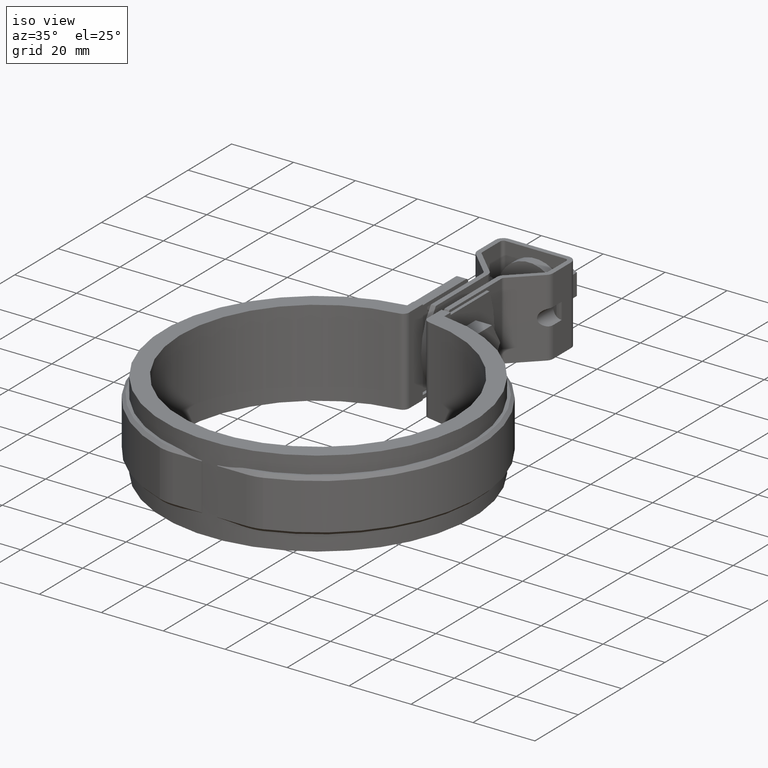
[diagram: clean part render]
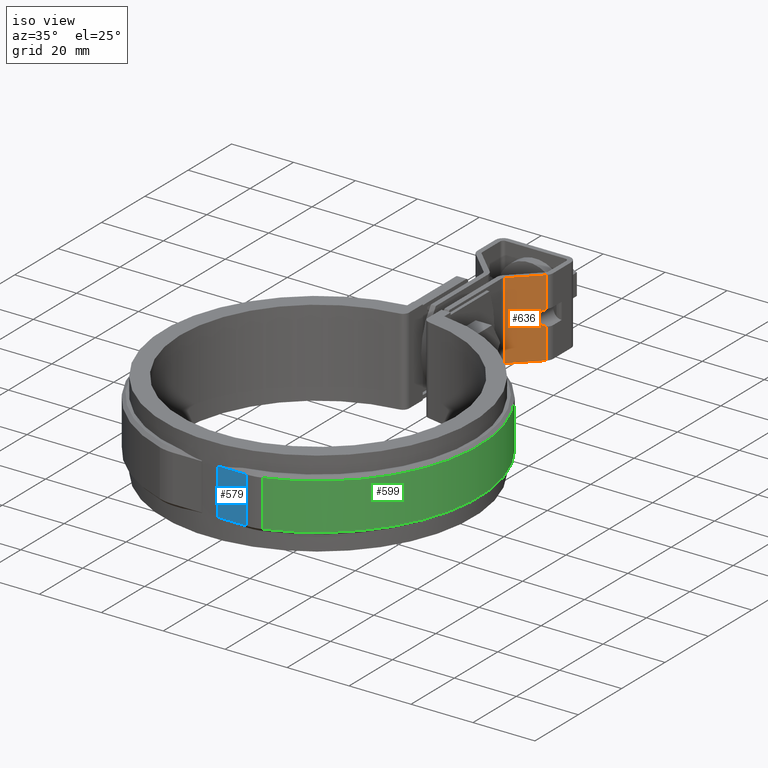
[diagram: same view with three faces highlighted in distinct colors, each labeled with its STEP entity id]
A machine part, iso view with three faces highlighted in distinct colors.
Their STEP definitions:

[orange] entity #636 — the highlighted planar face has unit normal (0.6983, -0.7158, 0).
#636 = ADVANCED_FACE( '', ( #1187 ), #1188, .T. );
#1187 = FACE_OUTER_BOUND( '', #2527, .T. );
#1188 = PLANE( '', #2528 );
#2527 = EDGE_LOOP( '', ( #5851, #5852, #5853, #5854, #5855, #5856 ) );
#2528 = AXIS2_PLACEMENT_3D( '', #5857, #5858, #5859 );
#5851 = ORIENTED_EDGE( '', *, *, #7897, .T. );
#5852 = ORIENTED_EDGE( '', *, *, #7898, .F. );
#5853 = ORIENTED_EDGE( '', *, *, #7882, .T. );
#5854 = ORIENTED_EDGE( '', *, *, #7899, .F. );
#5855 = ORIENTED_EDGE( '', *, *, #7807, .F. );
#5856 = ORIENTED_EDGE( '', *, *, #7900, .F. );
#5857 = CARTESIAN_POINT( '', ( 3.90167616437032, 81.6516822966422, 12.4999999943156 ) );
#5858 = DIRECTION( '', ( 0.698323835531320, -0.715781964517705, 3.41092840061489E-011 ) );
#5859 = DIRECTION( '', ( 0.000000000000000, -4.76531761024906E-011, -1.00000000000000 ) );
#7807 = EDGE_CURVE( '', #9115, #9117, #9118, .F. );
#7882 = EDGE_CURVE( '', #9243, #9244, #9245, .F. );
#7897 = EDGE_CURVE( '', #9269, #9270, #9271, .T. );
#7898 = EDGE_CURVE( '', #9243, #9270, #9272, .T. );
#7899 = EDGE_CURVE( '', #9117, #9244, #9273, .T. );
#7900 = EDGE_CURVE( '', #9269, #9115, #9274, .T. );
#9115 = VERTEX_POINT( '', #13023 );
#9117 = VERTEX_POINT( '', #13025 );
#9118 = LINE( '', #13026, #13027 );
#9243 = VERTEX_POINT( '', #13233 );
#9244 = VERTEX_POINT( '', #13234 );
#9245 = ELLIPSE( '', #13235, 3.70224472166266, 2.64999999999997 );
#9269 = VERTEX_POINT( '', #13282 );
#9270 = VERTEX_POINT( '', #13283 );
#9271 = LINE( '', #13284, #13285 );
#9272 = LINE( '', #13286, #13287 );
#9273 = LINE( '', #13288, #13289 );
#9274 = LINE( '', #13290, #13291 );
#13023 = CARTESIAN_POINT( '', ( 3.30167616437098, 81.0663164700519, 12.4999999943429 ) );
#13025 = CARTESIAN_POINT( '', ( 11.4656419722716, 89.0311607923885, 12.4999999939710 ) );
#13026 = CARTESIAN_POINT( '', ( 5.72823783045374, 83.4336935957860, 12.4999999942323 ) );
#13027 = VECTOR( '', #14927, 1000.00000000000 );
#13233 = CARTESIAN_POINT( '', ( 11.4656419722789, 89.0311607916793, -2.53126105232718 ) );
#13234 = CARTESIAN_POINT( '', ( 11.4656419722765, 89.0311607919181, 2.53126104026931 ) );
#13235 = AXIS2_PLACEMENT_3D( '', #15042, #15043, #15044 );
#13282 = CARTESIAN_POINT( '', ( 3.30167616438309, 81.0663164688724, -12.5000000056571 ) );
#13283 = CARTESIAN_POINT( '', ( 11.4656419722837, 89.0311607912090, -12.5000000060290 ) );
#13284 = CARTESIAN_POINT( '', ( 3.90167616438242, 81.6516822954627, -12.5000000056845 ) );
#13285 = VECTOR( '', #15067, 1000.00000000000 );
#13286 = CARTESIAN_POINT( '', ( 11.4656419722716, 89.0311607923885, 12.4999999939711 ) );
#13287 = VECTOR( '', #15068, 1000.00000000000 );
#13288 = CARTESIAN_POINT( '', ( 11.4656419722716, 89.0311607923885, 12.4999999939711 ) );
#13289 = VECTOR( '', #15069, 1000.00000000000 );
#13290 = CARTESIAN_POINT( '', ( 3.30167616437099, 81.0663164700519, 12.4999999943429 ) );
#13291 = VECTOR( '', #15070, 1000.00000000000 );
#14927 = DIRECTION( '', ( -0.715781964517705, -0.698323835531320, 3.26011656361548E-011 ) );
#15042 = CARTESIAN_POINT( '', ( 12.2499999998975, 89.7963881004335, -6.06465905272916E-009 ) );
#15043 = DIRECTION( '', ( 0.698323835531320, -0.715781964517705, 3.41092840061489E-011 ) );
#15044 = DIRECTION( '', ( 0.715781964517705, 0.698323835531320, -3.26011656361548E-011 ) );
#15067 = DIRECTION( '', ( 0.715781964517705, 0.698323835531320, -3.26011656361548E-011 ) );
#15068 = DIRECTION( '', ( 4.83999649787072E-013, -4.71809813440451E-011, -1.00000000000000 ) );
#15069 = DIRECTION( '', ( 4.83999649787072E-013, -4.71809813440451E-011, -1.00000000000000 ) );
#15070 = DIRECTION( '', ( -4.84060880104763E-013, 4.71809216071525E-011, 1.00000000000000 ) );

[blue] entity #579 — the highlighted planar face has unit normal (0, -1, 0).
#579 = ADVANCED_FACE( '', ( #1071 ), #1072, .T. );
#1071 = FACE_OUTER_BOUND( '', #2359, .T. );
#1072 = PLANE( '', #2360 );
#2359 = EDGE_LOOP( '', ( #5278, #5279, #5280, #5281 ) );
#2360 = AXIS2_PLACEMENT_3D( '', #5282, #5283, #5284 );
#5278 = ORIENTED_EDGE( '', *, *, #7776, .T. );
#5279 = ORIENTED_EDGE( '', *, *, #7753, .T. );
#5280 = ORIENTED_EDGE( '', *, *, #7574, .F. );
#5281 = ORIENTED_EDGE( '', *, *, #7717, .T. );
#5282 = CARTESIAN_POINT( '', ( 11.8531641345255, -50.0500000000000, -8.50000000000000 ) );
#5283 = DIRECTION( '', ( 0.000000000000000, -1.00000000000000, 0.000000000000000 ) );
#5284 = DIRECTION( '', ( 0.000000000000000, 0.000000000000000, -1.00000000000000 ) );
#7574 = EDGE_CURVE( '', #8735, #8736, #8737, .T. );
#7717 = EDGE_CURVE( '', #8735, #8987, #8989, .T. );
#7753 = EDGE_CURVE( '', #9039, #8736, #9041, .F. );
#7776 = EDGE_CURVE( '', #8987, #9039, #9068, .T. );
#8735 = VERTEX_POINT( '', #12099 );
#8736 = VERTEX_POINT( '', #12100 );
#8737 = LINE( '', #12101, #12102 );
#8987 = VERTEX_POINT( '', #12832 );
#8989 = LINE( '', #12835, #12836 );
#9039 = VERTEX_POINT( '', #12911 );
#9041 = LINE( '', #12914, #12915 );
#9068 = LINE( '', #12957, #12958 );
#12099 = CARTESIAN_POINT( '', ( 2.50000000000000, -50.0500000000000, -7.50000000000000 ) );
#12100 = CARTESIAN_POINT( '', ( 2.50000000000000, -50.0500000000000, 7.50000000000000 ) );
#12101 = CARTESIAN_POINT( '', ( 2.50000000000000, -50.0500000000000, -8.50000000000000 ) );
#12102 = VECTOR( '', #14662, 1000.00000000000 );
#12832 = CARTESIAN_POINT( '', ( 11.8531641345254, -50.0500000000000, -7.50000000000000 ) );
#12835 = CARTESIAN_POINT( '', ( 11.8531641345255, -50.0500000000000, -7.50000000000000 ) );
#12836 = VECTOR( '', #14778, 1000.00000000000 );
#12911 = CARTESIAN_POINT( '', ( 11.8531641345254, -50.0500000000000, 7.50000000000000 ) );
#12914 = CARTESIAN_POINT( '', ( 11.8531641345255, -50.0500000000000, 7.50000000000000 ) );
#12915 = VECTOR( '', #14835, 1000.00000000000 );
#12957 = CARTESIAN_POINT( '', ( 11.8531641345254, -50.0500000000000, -8.50000000000000 ) );
#12958 = VECTOR( '', #14872, 1000.00000000000 );
#14662 = DIRECTION( '', ( 0.000000000000000, 0.000000000000000, 1.00000000000000 ) );
#14778 = DIRECTION( '', ( 1.00000000000000, 0.000000000000000, 0.000000000000000 ) );
#14835 = DIRECTION( '', ( 1.00000000000000, 0.000000000000000, 0.000000000000000 ) );
#14872 = DIRECTION( '', ( 0.000000000000000, 0.000000000000000, 1.00000000000000 ) );

[green] entity #599 — the highlighted cylindrical surface (partial cylindrical patch) has radius 52 mm, axis along (0, 0, -1).
#599 = ADVANCED_FACE( '', ( #1111 ), #1112, .T. );
#1111 = FACE_OUTER_BOUND( '', #2402, .T. );
#1112 = CYLINDRICAL_SURFACE( '', #2403, 52.0000000000000 );
#2402 = EDGE_LOOP( '', ( #5504, #5505, #5506, #5507 ) );
#2403 = AXIS2_PLACEMENT_3D( '', #5508, #5509, #5510 );
#5504 = ORIENTED_EDGE( '', *, *, #7742, .F. );
#5505 = ORIENTED_EDGE( '', *, *, #7670, .T. );
#5506 = ORIENTED_EDGE( '', *, *, #7789, .F. );
#5507 = ORIENTED_EDGE( '', *, *, #7749, .T. );
#5508 = CARTESIAN_POINT( '', ( 0.000000000000000, 6.93889390390723E-015, -8.50000000000000 ) );
#5509 = DIRECTION( '', ( 0.000000000000000, 0.000000000000000, -1.00000000000000 ) );
#5510 = DIRECTION( '', ( 0.0961538461538461, 0.995366484200579, 0.000000000000000 ) );
#7670 = EDGE_CURVE( '', #8904, #8906, #8908, .T. );
#7742 = EDGE_CURVE( '', #8904, #9023, #9024, .F. );
#7749 = EDGE_CURVE( '', #9034, #9023, #9035, .T. );
#7789 = EDGE_CURVE( '', #9034, #8906, #9082, .T. );
#8904 = VERTEX_POINT( '', #12653 );
#8906 = VERTEX_POINT( '', #12658 );
#8908 = CIRCLE( '', #12661, 52.0000000000000 );
#9023 = VERTEX_POINT( '', #12885 );
#9024 = LINE( '', #12886, #12887 );
#9034 = VERTEX_POINT( '', #12905 );
#9035 = CIRCLE( '', #12906, 52.0000000000000 );
#9082 = LINE( '', #12979, #12980 );
#12653 = CARTESIAN_POINT( '', ( 6.00000000000000, 51.6526862805799, 7.50000000000000 ) );
#12658 = CARTESIAN_POINT( '', ( 16.6585009458195, -49.2594594594595, 7.49999999999995 ) );
#12661 = AXIS2_PLACEMENT_3D( '', #14729, #14730, #14731 );
#12885 = CARTESIAN_POINT( '', ( 6.00000000000000, 51.6526862805799, -7.50000000000000 ) );
#12886 = CARTESIAN_POINT( '', ( 6.00000000000000, 51.6526862805799, -8.50000000000000 ) );
#12887 = VECTOR( '', #14821, 1000.00000000000 );
#12905 = CARTESIAN_POINT( '', ( 16.6585009458195, -49.2594594594595, -7.49999999999995 ) );
#12906 = AXIS2_PLACEMENT_3D( '', #14827, #14828, #14829 );
#12979 = CARTESIAN_POINT( '', ( 16.6585009458195, -49.2594594594595, -8.50000000000000 ) );
#12980 = VECTOR( '', #14895, 1000.00000000000 );
#14729 = CARTESIAN_POINT( '', ( 0.000000000000000, 6.93889390390723E-015, 7.50000000000000 ) );
#14730 = DIRECTION( '', ( 0.000000000000000, 0.000000000000000, -1.00000000000000 ) );
#14731 = DIRECTION( '', ( -1.00000000000000, 0.000000000000000, 0.000000000000000 ) );
#14821 = DIRECTION( '', ( 0.000000000000000, 0.000000000000000, 1.00000000000000 ) );
#14827 = CARTESIAN_POINT( '', ( 0.000000000000000, 6.93889390390723E-015, -7.50000000000000 ) );
#14828 = DIRECTION( '', ( 0.000000000000000, 0.000000000000000, 1.00000000000000 ) );
#14829 = DIRECTION( '', ( 1.00000000000000, 0.000000000000000, 0.000000000000000 ) );
#14895 = DIRECTION( '', ( 0.000000000000000, 0.000000000000000, 1.00000000000000 ) );